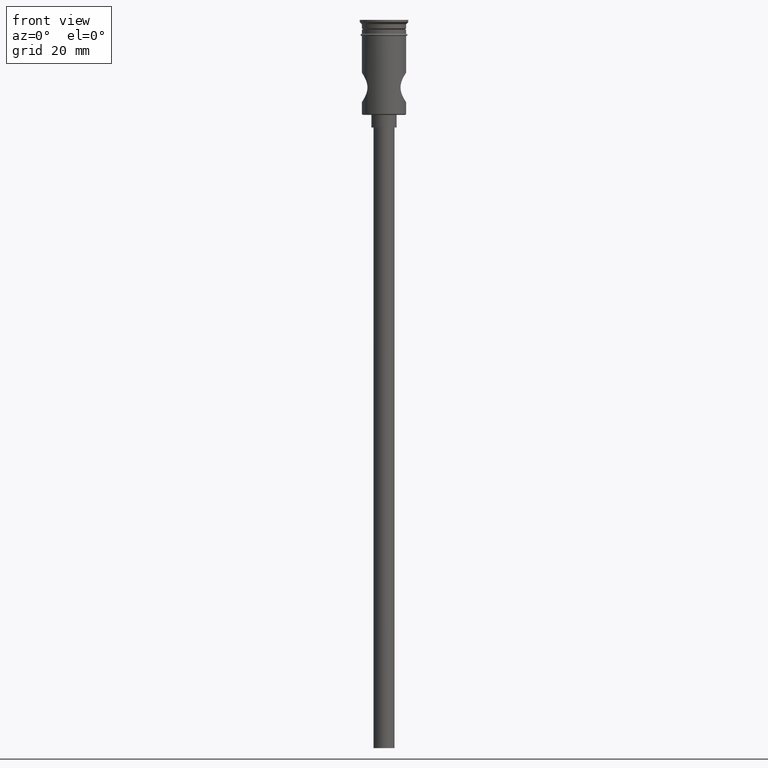
[diagram: clean part render]
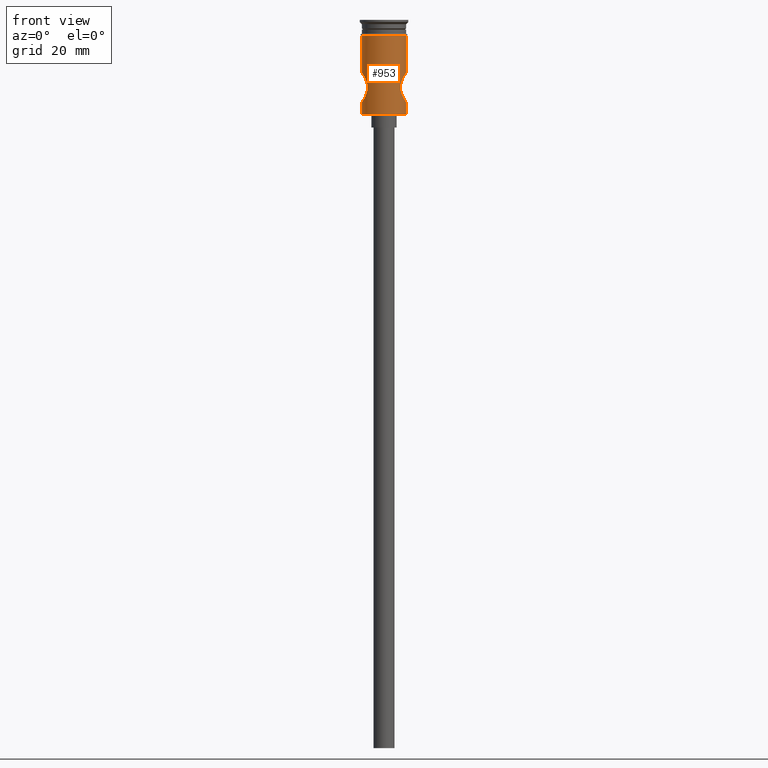
[diagram: same view with one face highlighted and labeled with its STEP entity id]
A machine part, front view. The second image highlights one B-rep face of the part: STEP entity #953.
In plain terms, the highlighted cylindrical surface (edge-blend (fillet) strip) has radius 5.25 mm, axis along (-0, -0, 1).
Its self-contained STEP definition (entity closure, byte-faithful):
#7 = CARTESIAN_POINT ( 'NONE',  ( 5.249999999999997335, -0.2356573567156187154, -12.50000000000000178 ) ) ;
#8 = EDGE_CURVE ( 'NONE', #531, #1429, #92, .T. ) ;
#22 = CARTESIAN_POINT ( 'NONE',  ( 3.934854629125831060, -3.476098995561848870, -15.52910205287917300 ) ) ;
#24 = CARTESIAN_POINT ( 'NONE',  ( -5.010722034647407064, -1.582225660229890307, -12.86955452061876848 ) ) ;
#31 = CARTESIAN_POINT ( 'NONE',  ( -5.171017401262786528, -0.9368000147816665235, -12.61943741575976219 ) ) ;
#38 = CARTESIAN_POINT ( 'NONE',  ( -4.710700327440311419, -2.324554412983744989, -13.37397079666040334 ) ) ;
#42 = CARTESIAN_POINT ( 'NONE',  ( 4.941870577857391922, -1.783409467750110000, -12.98008101414071547 ) ) ;
#43 = FACE_OUTER_BOUND ( 'NONE', #716, .T. ) ;
#70 = VERTEX_POINT ( 'NONE', #82 ) ;
#82 = CARTESIAN_POINT ( 'NONE',  ( 5.249999999999997335, 0.000000000000000000, -19.50000000000000000 ) ) ;
#89 = CARTESIAN_POINT ( 'NONE',  ( -4.213805231981512023, -3.133507475994600444, -17.57552681985903220 ) ) ;
#92 = LINE ( 'NONE', #200, #1073 ) ;
#105 = CARTESIAN_POINT ( 'NONE',  ( -5.249999999999997335, 0.000000000000000000, -19.50000000000000000 ) ) ;
#124 = DIRECTION ( 'NONE',  ( 1.000000000000000000, 0.000000000000000000, 0.000000000000000000 ) ) ;
#132 = CARTESIAN_POINT ( 'NONE',  ( 4.290711569970872219, -3.028956263479463562, -14.23220649750371614 ) ) ;
#139 = CARTESIAN_POINT ( 'NONE',  ( 4.015860184454198567, -3.382190437898871416, -15.06951789628485727 ) ) ;
#145 = CARTESIAN_POINT ( 'NONE',  ( 4.791591092289863241, -2.154829214170282725, -13.23284061381126975 ) ) ;
#152 = CARTESIAN_POINT ( 'NONE',  ( 4.455882725706746150, -2.780268144892072968, -13.86229586798407887 ) ) ;
#157 = B_SPLINE_CURVE_WITH_KNOTS ( 'NONE', 3,
 ( #201, #7, #464, #908, #1366, #1279, #42, #145, #1371, #1054, #152, #132, #580, #1153, #139, #22, #810, #260, #602, #708, #1158, #920, #265, #1025, #589, #694, #494, #234, #801, #1144, #252, #1032 ),
 .UNSPECIFIED., .F., .F.,
 ( 4, 2, 2, 2, 2, 2, 2, 2, 2, 2, 2, 2, 2, 2, 2, 4 ),
 ( 0.01131190453721613205, 0.01201796450896624319, 0.01272402448071635259, 0.01343008445246646372, 0.01413614442421657486, 0.01484220439596668599, 0.01554826436771679712, 0.01625432433946690652, 0.01696038431121701939, 0.01766644428296712879, 0.01837250425471723819, 0.01978462419821747087, 0.02049068416996758721, 0.02119674414171770355, 0.02190280411346781642, 0.02260886408521793275 ),
 .UNSPECIFIED. ) ;
#158 = ORIENTED_EDGE ( 'NONE', *, *, #421, .F. ) ;
#160 = LINE ( 'NONE', #869, #751 ) ;
#187 = ORIENTED_EDGE ( 'NONE', *, *, #905, .T. ) ;
#198 = CARTESIAN_POINT ( 'NONE',  ( -4.542868706571997706, -2.637461925376886285, -18.31144200051445381 ) ) ;
#200 = CARTESIAN_POINT ( 'NONE',  ( 5.249999999999997335, 0.000000000000000000, 0.000000000000000000 ) ) ;
#201 = CARTESIAN_POINT ( 'NONE',  ( 5.249999999999997335, 9.037561610381727207E-20, -12.50000000000000000 ) ) ;
#216 = CARTESIAN_POINT ( 'NONE',  ( -3.912935558424083915, -3.500205050033671217, -15.76559328519910252 ) ) ;
#227 = AXIS2_PLACEMENT_3D ( 'NONE', #1287, #603, #916 ) ;
#231 = CARTESIAN_POINT ( 'NONE',  ( -5.249999999999997335, 6.429395695523601195E-16, 0.000000000000000000 ) ) ;
#234 = CARTESIAN_POINT ( 'NONE',  ( 5.124746031636080446, -1.160605218168686559, -19.30988035096184774 ) ) ;
#245 = CARTESIAN_POINT ( 'NONE',  ( -5.249999999999997335, 6.428491939192731130E-16, -12.50000000000000000 ) ) ;
#252 = CARTESIAN_POINT ( 'NONE',  ( 5.249999999999995559, -0.2391654009334196473, -19.49999999999999645 ) ) ;
#255 = CARTESIAN_POINT ( 'NONE',  ( 5.249999999999997335, 0.000000000000000000, -22.29999999999999716 ) ) ;
#260 = CARTESIAN_POINT ( 'NONE',  ( 3.913265713256699474, -3.499835925500728528, -16.24147938307707051 ) ) ;
#265 = CARTESIAN_POINT ( 'NONE',  ( 4.459834455484655180, -2.792467526987480575, -18.15591097312378110 ) ) ;
#267 = CARTESIAN_POINT ( 'NONE',  ( -5.233763254461207381, -0.4740647931550001082, -12.52421804113796000 ) ) ;
#278 = CYLINDRICAL_SURFACE ( 'NONE', #661, 5.249999999999997335 ) ;
#285 = CARTESIAN_POINT ( 'NONE',  ( 5.249999999999999112, 0.000000000000000000, -3.799999999999998934 ) ) ;
#290 = EDGE_CURVE ( 'NONE', #407, #1082, #505, .T. ) ;
#310 = CARTESIAN_POINT ( 'NONE',  ( -5.125279937689080967, -1.158394803269064743, -19.31071042783137059 ) ) ;
#385 = ORIENTED_EDGE ( 'NONE', *, *, #1242, .F. ) ;
#387 = CARTESIAN_POINT ( 'NONE',  ( 0.000000000000000000, 0.000000000000000000, 0.000000000000000000 ) ) ;
#389 = CARTESIAN_POINT ( 'NONE',  ( -5.249999999999997335, 0.000000000000000000, -19.50000000000000000 ) ) ;
#395 = VERTEX_POINT ( 'NONE', #1107 ) ;
#407 = VERTEX_POINT ( 'NONE', #898 ) ;
#413 = ORIENTED_EDGE ( 'NONE', *, *, #763, .F. ) ;
#421 = EDGE_CURVE ( 'NONE', #533, #407, #545, .T. ) ;
#434 = CARTESIAN_POINT ( 'NONE',  ( -4.017161582871403347, -3.380647649991994186, -16.93567858667558923 ) ) ;
#442 = CARTESIAN_POINT ( 'NONE',  ( -5.233705508463599720, -0.4736751586742008469, -19.47569040078916203 ) ) ;
#464 = CARTESIAN_POINT ( 'NONE',  ( 5.233633430427243383, -0.4750094798020726428, -12.52441511600401824 ) ) ;
#479 = CARTESIAN_POINT ( 'NONE',  ( -4.455965565348066093, -2.780112593366053542, -13.86216665491766697 ) ) ;
#494 = CARTESIAN_POINT ( 'NONE',  ( 5.010881149324092121, -1.581485525877044829, -19.13068937161849803 ) ) ;
#496 = ORIENTED_EDGE ( 'NONE', *, *, #848, .F. ) ;
#503 = DIRECTION ( 'NONE',  ( 1.000000000000000000, 0.000000000000000000, 0.000000000000000000 ) ) ;
#505 = LINE ( 'NONE', #1059, #1075 ) ;
#531 = VERTEX_POINT ( 'NONE', #1057 ) ;
#533 = VERTEX_POINT ( 'NONE', #389 ) ;
#535 = CARTESIAN_POINT ( 'NONE',  ( -4.943096194098154150, -1.780193258326856931, -19.02194769508573202 ) ) ;
#545 = B_SPLINE_CURVE_WITH_KNOTS ( 'NONE', 3,
 ( #105, #787, #442, #1324, #310, #1216, #535, #1210, #980, #198, #1140, #585, #89, #1443, #434, #884, #771, #666, #1340, #216, #672, #1002, #1049, #605, #1160, #479, #828, #38, #1378, #1171, #24, #697, #31, #267, #1151, #245 ),
 .UNSPECIFIED., .F., .F.,
 ( 4, 2, 2, 2, 2, 2, 2, 2, 2, 2, 2, 2, 2, 2, 2, 2, 2, 4 ),
 ( 0.000000000000000000, 0.0007069940335760027238, 0.001413988067152005448, 0.002120982100728007955, 0.002827976134304010895, 0.003534970167880013402, 0.004241964201456015909, 0.004948958235032018850, 0.005302455251820025091, 0.005655952268608031332, 0.006362946302184043813, 0.007069940335760057162, 0.007776934369336069644, 0.008483928402912082126, 0.009190922436488094607, 0.009897916470064108824, 0.01060491050364011957, 0.01131190453721613379 ),
 .UNSPECIFIED. ) ;
#580 = CARTESIAN_POINT ( 'NONE',  ( 4.211358233975349030, -3.136775979440170392, -14.43100953861070757 ) ) ;
#585 = CARTESIAN_POINT ( 'NONE',  ( -4.291847880858497000, -3.027309060174747213, -17.77045454751424103 ) ) ;
#589 = CARTESIAN_POINT ( 'NONE',  ( 4.793649463825864210, -2.150235679629801222, -18.77070743917914442 ) ) ;
#602 = CARTESIAN_POINT ( 'NONE',  ( 3.935709764125989718, -3.475135228226967854, -16.47752279465179015 ) ) ;
#603 = DIRECTION ( 'NONE',  ( -0.000000000000000000, -0.000000000000000000, 1.000000000000000000 ) ) ;
#605 = CARTESIAN_POINT ( 'NONE',  ( -4.211626988821404183, -3.136439829262894108, -14.43012365747861736 ) ) ;
#661 = AXIS2_PLACEMENT_3D ( 'NONE', #387, #834, #124 ) ;
#666 = CARTESIAN_POINT ( 'NONE',  ( -3.918847831090380041, -3.493622200933426569, -16.24210921229989424 ) ) ;
#672 = CARTESIAN_POINT ( 'NONE',  ( -3.934500147216332344, -3.476502778859750897, -15.53158113228982806 ) ) ;
#694 = CARTESIAN_POINT ( 'NONE',  ( 4.943496079229932505, -1.778885936374027255, -19.02256480771651681 ) ) ;
#697 = CARTESIAN_POINT ( 'NONE',  ( -5.125401452483049347, -1.158029921580444821, -12.68909474010616023 ) ) ;
#708 = CARTESIAN_POINT ( 'NONE',  ( 4.017013811892041986, -3.380824786493573431, -16.93520940805085928 ) ) ;
#716 = EDGE_LOOP ( 'NONE', ( #413, #187, #1295, #385, #1219, #496, #1190, #158 ) ) ;
#717 = DIRECTION ( 'NONE',  ( -0.000000000000000000, -0.000000000000000000, 1.000000000000000000 ) ) ;
#720 = AXIS2_PLACEMENT_3D ( 'NONE', #1155, #717, #503 ) ;
#751 = VECTOR ( 'NONE', #1307, 1000.000000000000000 ) ;
#763 = EDGE_CURVE ( 'NONE', #395, #533, #1138, .T. ) ;
#771 = CARTESIAN_POINT ( 'NONE',  ( -3.940413688538168646, -3.469280093805878540, -16.47760714426993189 ) ) ;
#775 = CIRCLE ( 'NONE', #227, 5.249999999999997335 ) ;
#787 = CARTESIAN_POINT ( 'NONE',  ( -5.249999999999997335, -0.2394817979535391328, -19.49999999999999645 ) ) ;
#792 = DIRECTION ( 'NONE',  ( -0.000000000000000000, -0.000000000000000000, 1.000000000000000000 ) ) ;
#801 = CARTESIAN_POINT ( 'NONE',  ( 5.171446349193719705, -0.9340234967078276940, -19.38121539794984827 ) ) ;
#810 = CARTESIAN_POINT ( 'NONE',  ( 3.912973667625768925, -3.500162442579392241, -15.76330045747091191 ) ) ;
#818 = VERTEX_POINT ( 'NONE', #255 ) ;
#828 = CARTESIAN_POINT ( 'NONE',  ( -4.542248346412463000, -2.638603940227049804, -13.68972905434602971 ) ) ;
#834 = DIRECTION ( 'NONE',  ( -0.000000000000000000, -0.000000000000000000, 1.000000000000000000 ) ) ;
#848 = EDGE_CURVE ( 'NONE', #1082, #1429, #1247, .T. ) ;
#869 = CARTESIAN_POINT ( 'NONE',  ( 5.249999999999997335, 0.000000000000000000, 0.000000000000000000 ) ) ;
#884 = CARTESIAN_POINT ( 'NONE',  ( -3.956270316689133537, -3.451288398606817687, -16.59344471299514368 ) ) ;
#898 = CARTESIAN_POINT ( 'NONE',  ( -5.249999999999997335, 6.428491939192731130E-16, -12.50000000000000000 ) ) ;
#905 = EDGE_CURVE ( 'NONE', #395, #818, #775, .T. ) ;
#908 = CARTESIAN_POINT ( 'NONE',  ( 5.171157607198457740, -0.9357787620484788738, -12.61922458594744434 ) ) ;
#916 = DIRECTION ( 'NONE',  ( -1.000000000000000000, 0.000000000000000000, 0.000000000000000000 ) ) ;
#920 = CARTESIAN_POINT ( 'NONE',  ( 4.282019573606241636, -3.045778496349780262, -17.78256220141813060 ) ) ;
#947 = DIRECTION ( 'NONE',  ( -0.000000000000000000, -0.000000000000000000, 1.000000000000000000 ) ) ;
#953 = ADVANCED_FACE ( 'NONE', ( #43 ), #278, .T. ) ;
#980 = CARTESIAN_POINT ( 'NONE',  ( -4.710272676435011796, -2.325337138264823800, -18.62521936663612010 ) ) ;
#991 = DIRECTION ( 'NONE',  ( -0.000000000000000000, -0.000000000000000000, 1.000000000000000000 ) ) ;
#1002 = CARTESIAN_POINT ( 'NONE',  ( -4.015700048634970543, -3.382383198169306660, -15.06996144822463179 ) ) ;
#1025 = CARTESIAN_POINT ( 'NONE',  ( 4.710874926819404784, -2.324119615847294984, -18.62629487387890848 ) ) ;
#1032 = CARTESIAN_POINT ( 'NONE',  ( 5.249999999999997335, 0.000000000000000000, -19.50000000000000000 ) ) ;
#1049 = CARTESIAN_POINT ( 'NONE',  ( -4.073963173537559435, -3.313288510862783642, -14.84939764593512557 ) ) ;
#1054 = CARTESIAN_POINT ( 'NONE',  ( 4.541142868155102263, -2.640433033719364886, -13.69193262782664000 ) ) ;
#1057 = CARTESIAN_POINT ( 'NONE',  ( 5.249999999999997335, 9.037561610381727207E-20, -12.50000000000000000 ) ) ;
#1059 = CARTESIAN_POINT ( 'NONE',  ( -5.249999999999997335, 6.429395695523601195E-16, 0.000000000000000000 ) ) ;
#1073 = VECTOR ( 'NONE', #991, 1000.000000000000000 ) ;
#1075 = VECTOR ( 'NONE', #947, 1000.000000000000000 ) ;
#1082 = VERTEX_POINT ( 'NONE', #1328 ) ;
#1107 = CARTESIAN_POINT ( 'NONE',  ( -5.249999999999997335, 6.429395695523601195E-16, -22.29999999999999716 ) ) ;
#1125 = VECTOR ( 'NONE', #792, 1000.000000000000000 ) ;
#1138 = LINE ( 'NONE', #231, #1125 ) ;
#1140 = CARTESIAN_POINT ( 'NONE',  ( -4.456129832326547024, -2.779831882631588424, -18.13814034968121192 ) ) ;
#1144 = CARTESIAN_POINT ( 'NONE',  ( 5.233651169580556761, -0.4745025501927485623, -19.47560998813100142 ) ) ;
#1151 = CARTESIAN_POINT ( 'NONE',  ( -5.250000000000000000, -0.2359691128690696027, -12.50000000000000711 ) ) ;
#1153 = CARTESIAN_POINT ( 'NONE',  ( 4.074555398726830369, -3.312536795685569135, -14.84752675069977990 ) ) ;
#1155 = CARTESIAN_POINT ( 'NONE',  ( 0.000000000000000000, 0.000000000000000000, -3.799999999999998934 ) ) ;
#1158 = CARTESIAN_POINT ( 'NONE',  ( 4.076244073135415036, -3.310471843351305843, -17.15838242263341229 ) ) ;
#1160 = CARTESIAN_POINT ( 'NONE',  ( -4.291292931424322887, -3.028111643923960372, -14.23084841941946976 ) ) ;
#1171 = CARTESIAN_POINT ( 'NONE',  ( -4.941524827079388338, -1.784271681777893637, -12.98066119771261739 ) ) ;
#1190 = ORIENTED_EDGE ( 'NONE', *, *, #290, .F. ) ;
#1210 = CARTESIAN_POINT ( 'NONE',  ( -4.791726953342657858, -2.154678821938329047, -18.76742029390492661 ) ) ;
#1216 = CARTESIAN_POINT ( 'NONE',  ( -5.011119671772967799, -1.580839205956426685, -19.13107480940701421 ) ) ;
#1219 = ORIENTED_EDGE ( 'NONE', *, *, #8, .T. ) ;
#1242 = EDGE_CURVE ( 'NONE', #531, #70, #157, .T. ) ;
#1247 = CIRCLE ( 'NONE', #720, 5.249999999999999112 ) ;
#1279 = CARTESIAN_POINT ( 'NONE',  ( 5.010287030224574778, -1.583769054670559395, -12.87024185501964624 ) ) ;
#1287 = CARTESIAN_POINT ( 'NONE',  ( 0.000000000000000000, 0.000000000000000000, -22.29999999999999716 ) ) ;
#1295 = ORIENTED_EDGE ( 'NONE', *, *, #1393, .T. ) ;
#1307 = DIRECTION ( 'NONE',  ( -0.000000000000000000, -0.000000000000000000, 1.000000000000000000 ) ) ;
#1324 = CARTESIAN_POINT ( 'NONE',  ( -5.171738567981855716, -0.9322884155218372770, -19.38166086832590551 ) ) ;
#1328 = CARTESIAN_POINT ( 'NONE',  ( -5.249999999999998224, 6.429395695523602181E-16, -3.799999999999998934 ) ) ;
#1340 = CARTESIAN_POINT ( 'NONE',  ( -3.913212435243750065, -3.499895492128140884, -16.12176624835053573 ) ) ;
#1366 = CARTESIAN_POINT ( 'NONE',  ( 5.125624017123612042, -1.157272214673059407, -12.68874170657910661 ) ) ;
#1371 = CARTESIAN_POINT ( 'NONE',  ( 4.708760133973805218, -2.328399268865064098, -13.37747860927764343 ) ) ;
#1378 = CARTESIAN_POINT ( 'NONE',  ( -4.791879949463428545, -2.154107611278241574, -13.23235612182024212 ) ) ;
#1393 = EDGE_CURVE ( 'NONE', #818, #70, #160, .T. ) ;
#1429 = VERTEX_POINT ( 'NONE', #285 ) ;
#1443 = CARTESIAN_POINT ( 'NONE',  ( -4.076450620869312758, -3.310222646711699301, -17.15912893648900450 ) ) ;